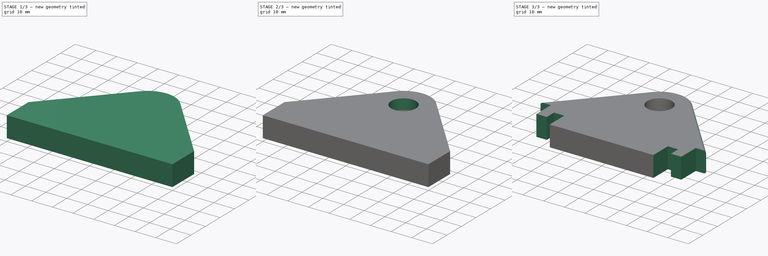
[diagram: build sequence overview — one tinted view per stage of 3, left to right]
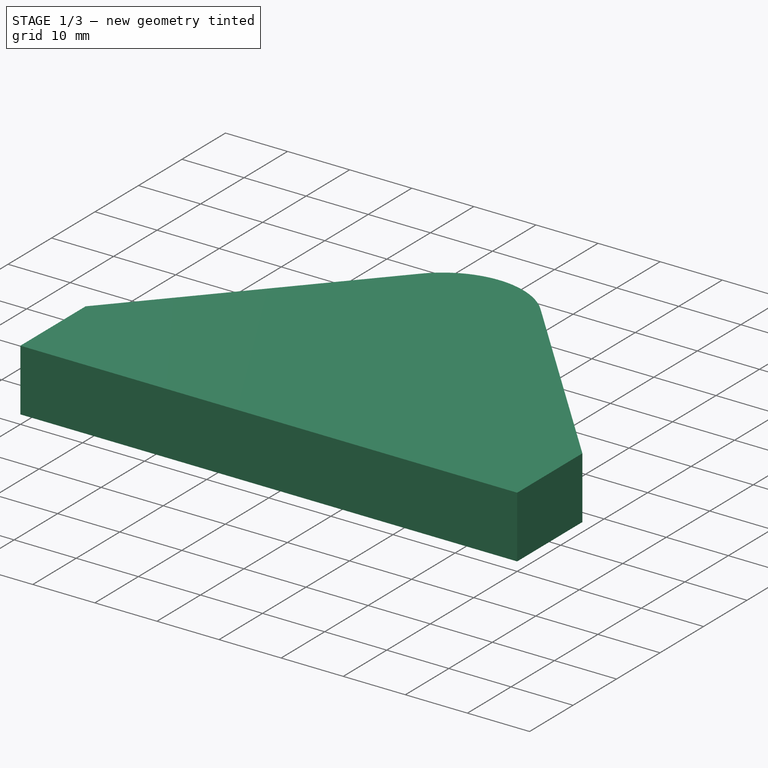
[diagram: stage 1 of 3 — iso view after this stage's code; geometry added in this stage tinted green]
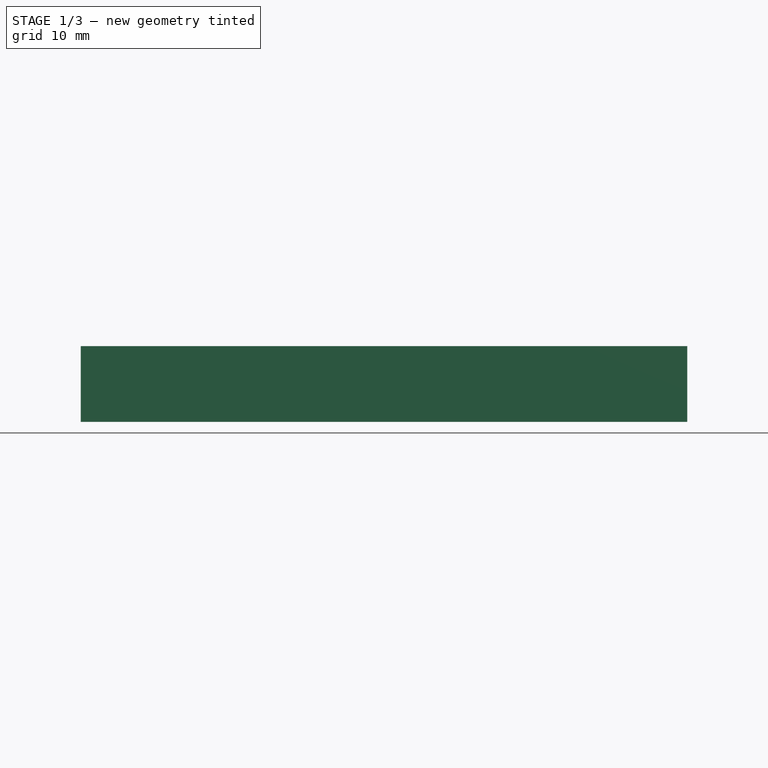
[diagram: stage 1 of 3 — front view after this stage's code; geometry added in this stage tinted green]
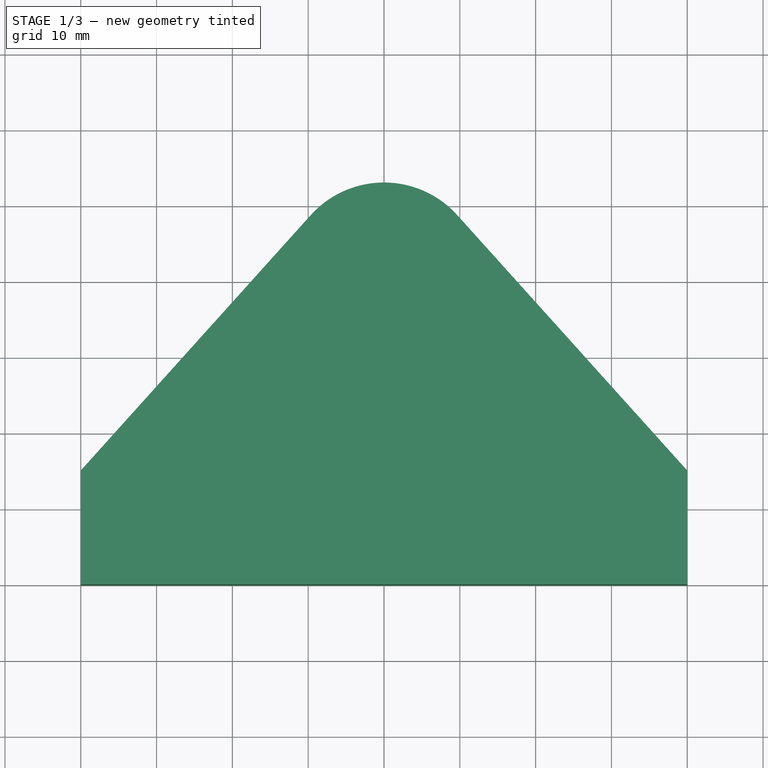
[diagram: stage 1 of 3 — top view after this stage's code; geometry added in this stage tinted green]
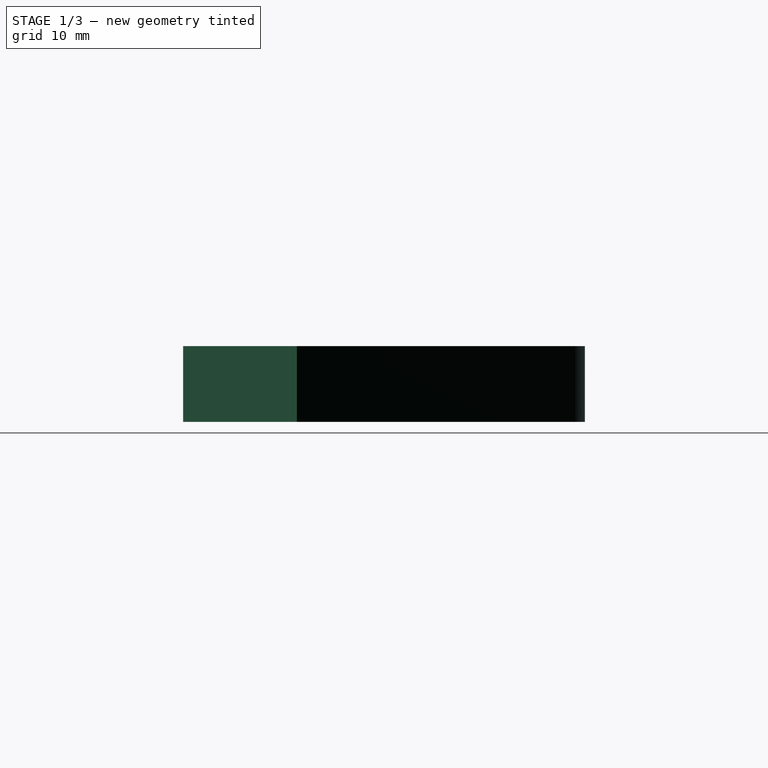
[diagram: stage 1 of 3 — right view after this stage's code; geometry added in this stage tinted green]
FCSTD DOCUMENT  (FreeCAD 0.16R6700 (Git))
Label: CoilHangerCap
License: All rights reserved
LicenseURL: http://en.wikipedia.org/wiki/All_rights_reserved
objects: Sketcher::SketchObject×4, PartDesign::Pocket×3, PartDesign::Pad×1, PartDesign::Fillet×1
note: 13 computed .brp shape members not serialized (recipe doc carries the construction recipe); baked Part::Feature solids carry a one-line shape summary decoded from their .brp

FEATURE [Sketcher::SketchObject] Sketch
  sketch-geometry (6):
    g0: LineSegment StartX=40 StartY=0 StartZ=0 EndX=-40 EndY=0 EndZ=0
    g1: ArcOfCircle CenterX=0 CenterY=40 CenterZ=0 NormalX=0 NormalY=0 NormalZ=1 Radius=13 StartAngle=0.732984 EndAngle=2.40861
    g2: LineSegment StartX=-40 StartY=0 StartZ=0 EndX=-40 EndY=15 EndZ=0
    g3: LineSegment StartX=-9.66136 StartY=48.6982 StartZ=0 EndX=-40 EndY=15 EndZ=0
    g4: LineSegment StartX=40 StartY=0 StartZ=0 EndX=40 EndY=15 EndZ=0
    g5: LineSegment StartX=9.66136 StartY=48.6982 StartZ=0 EndX=40 EndY=15 EndZ=0
  constraints (19):
    c: PointOnObject(g0,g-1)
    c: PointOnObject(g0,g-1)
    c: Vertical(g2)
    c: Coincident(g3,g1)
    c: Radius(g1) = 13
    c: DistanceY(g-1,g2) = 15
    c: Coincident(g4,g0)
    c: Vertical(g4)
    c: Coincident(g5,g1)
    c: Coincident(g5,g4)
    c: Coincident(g2,g3)
    c: DistanceY(g-1,g4) = 15
    c: Coincident(g0,g2)
    c: Tangent(g1,g3) = -1.5708
    c: Tangent(g1,g5) = 1.5708
    c: PointOnObject(g1,g-2)
    c: DistanceY(g-1,g1) = 40
    c: Symmetric(g0,g0,g-2)
    c: DistanceX(g0,g0) = 80
FEATURE [PartDesign::Pad] Pad
  Length = 10
  Length2 = 100
  Sketch = -> Sketch
  Type = 0
FEATURE [Sketcher::SketchObject] Sketch001
  Placement = pos=(0,0,0) rot=(1,0,0;3.14159rad)
  Support = -> Pad [Face7]
  sketch-geometry (1):
    g0: Circle CenterX=0 CenterY=-40 CenterZ=0 NormalX=0 NormalY=0 NormalZ=1 Radius=8
  constraints (1):
    c: Radius(g0) = 8
FEATURE [PartDesign::Pocket] Pocket
  Length = 5
  Sketch = -> Sketch001
  Type = 0
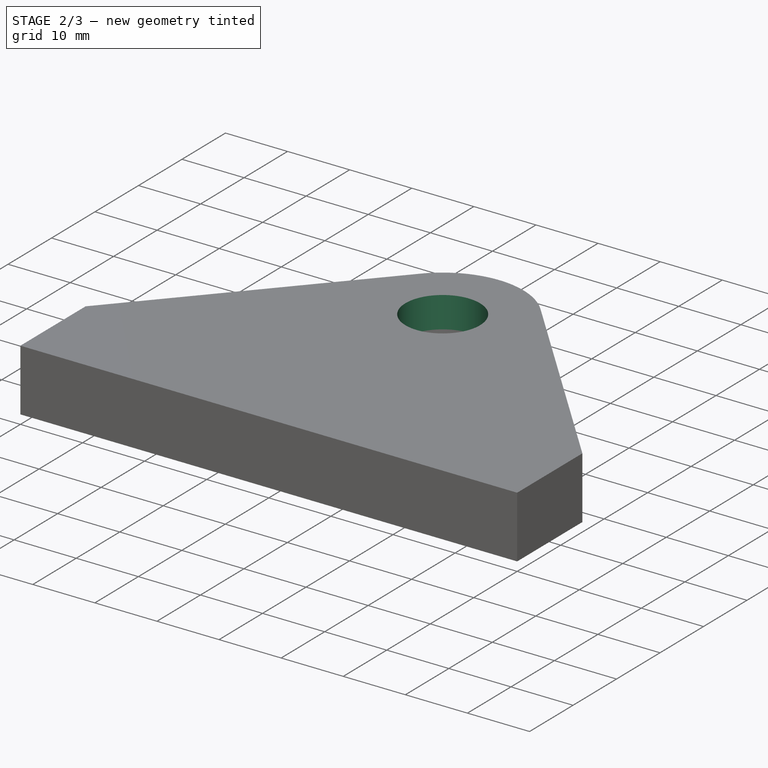
[diagram: stage 2 of 3 — iso view after this stage's code; geometry added in this stage tinted green]
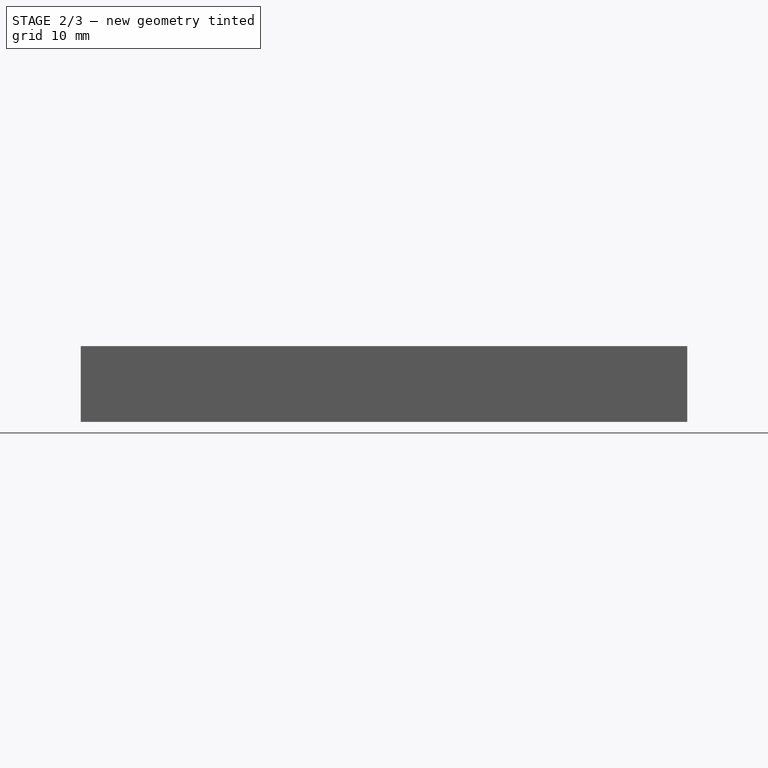
[diagram: stage 2 of 3 — front view after this stage's code; geometry added in this stage tinted green]
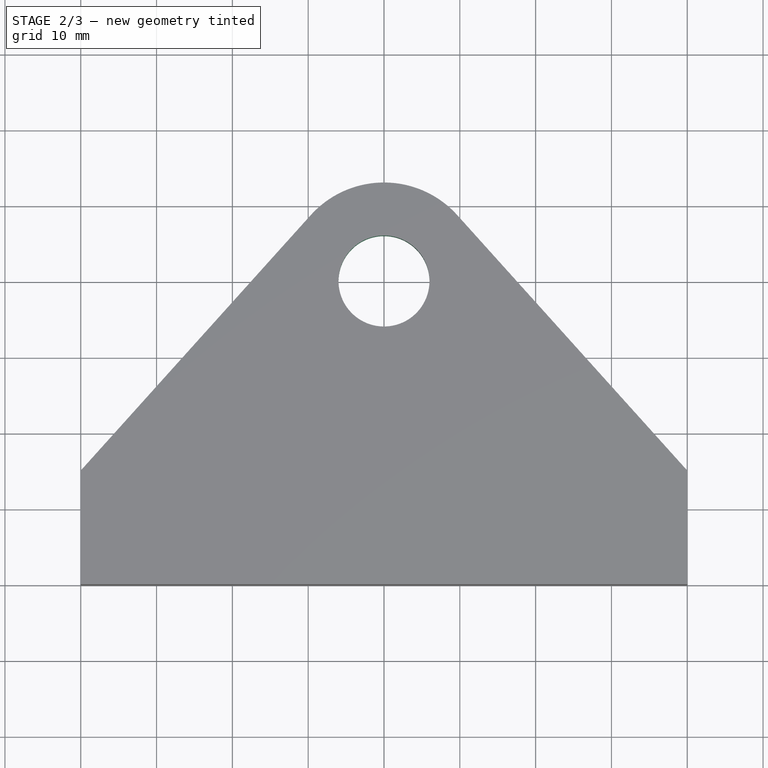
[diagram: stage 2 of 3 — top view after this stage's code; geometry added in this stage tinted green]
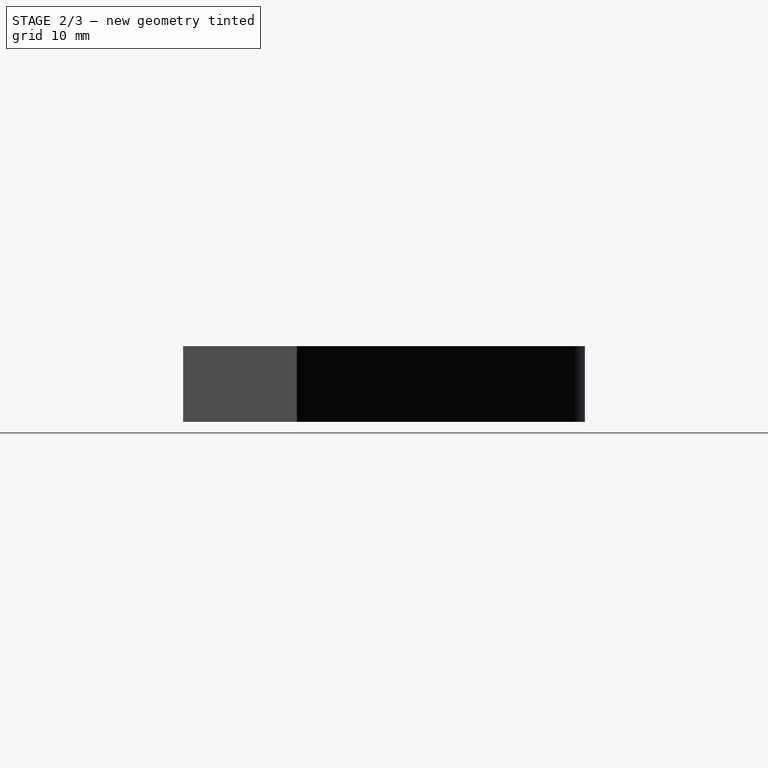
[diagram: stage 2 of 3 — right view after this stage's code; geometry added in this stage tinted green]
FEATURE [Sketcher::SketchObject] Sketch003
  Placement = pos=(0,0,5) rot=(1,0,0;3.14159rad)
  Support = -> Pocket [Face10]
  sketch-geometry (1):
    g0: Circle CenterX=0 CenterY=-40 CenterZ=0 NormalX=0 NormalY=0 NormalZ=1 Radius=6
  constraints (2):
    c: PointOnObject(g0,g-2)
    c: Radius(g0) = 6
FEATURE [PartDesign::Pocket] Pocket001
  Length = 5
  Sketch = -> Sketch003
  Type = 0
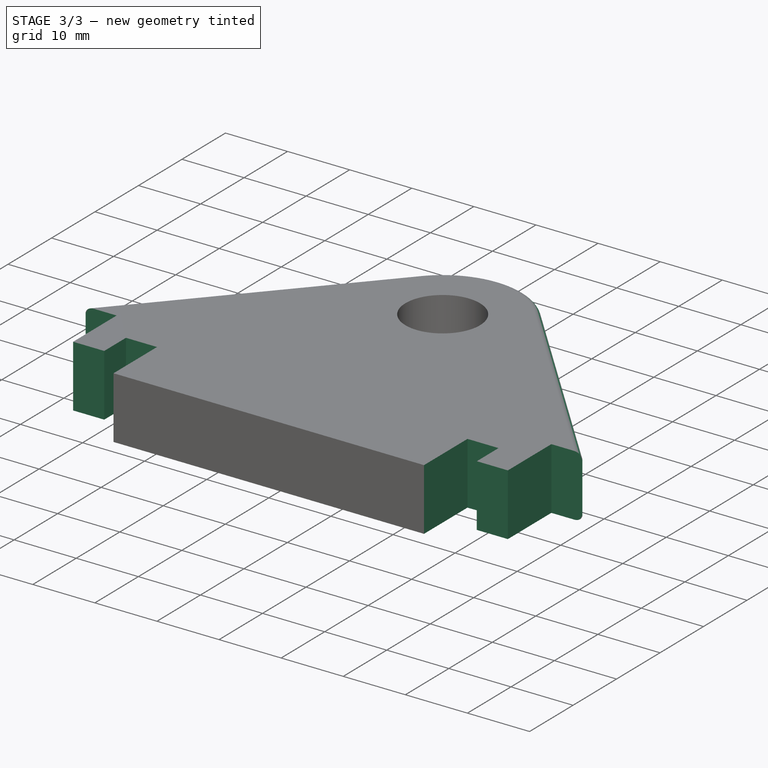
[diagram: stage 3 of 3 — iso view after this stage's code; geometry added in this stage tinted green]
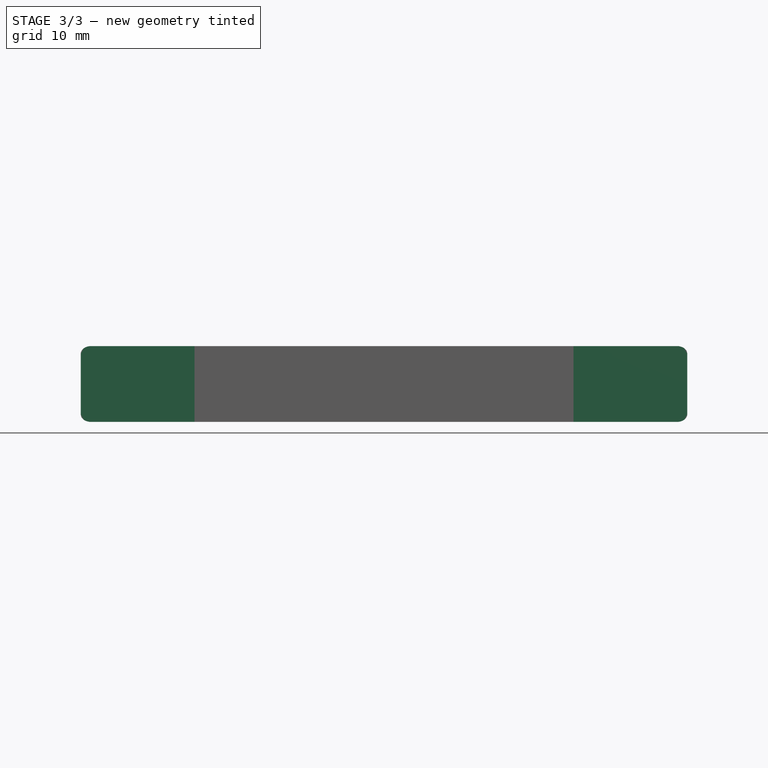
[diagram: stage 3 of 3 — front view after this stage's code; geometry added in this stage tinted green]
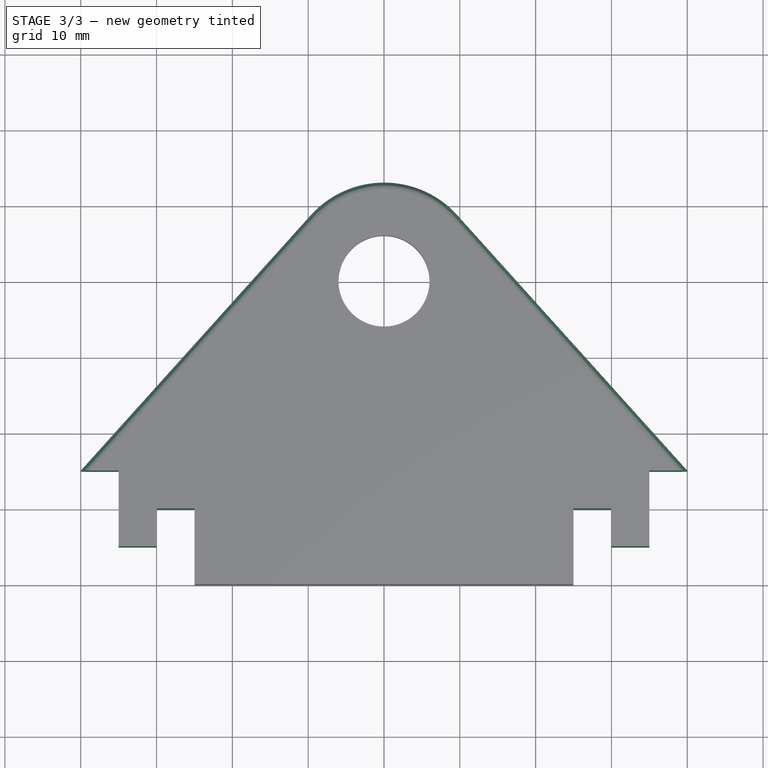
[diagram: stage 3 of 3 — top view after this stage's code; geometry added in this stage tinted green]
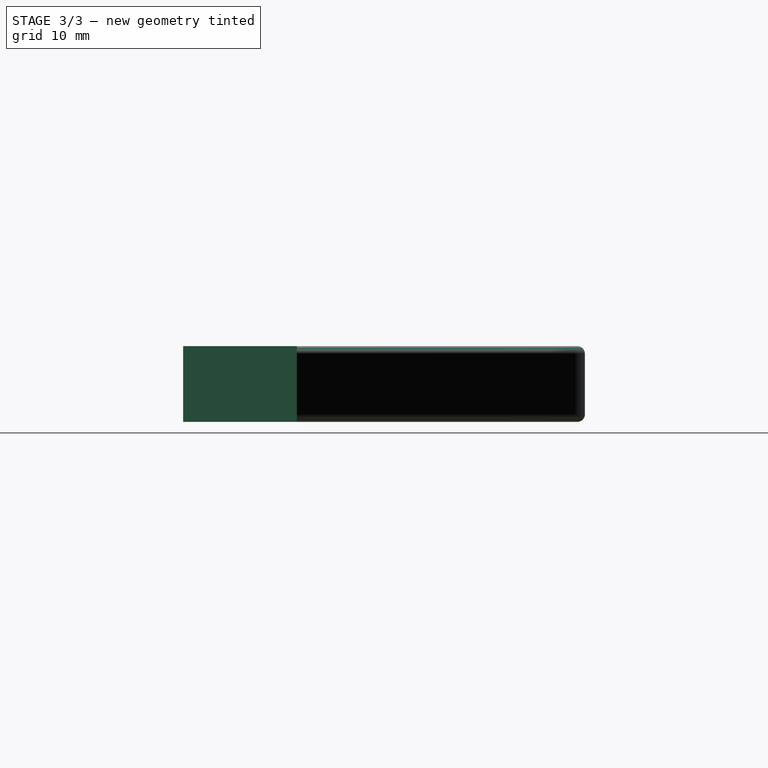
[diagram: stage 3 of 3 — right view after this stage's code; geometry added in this stage tinted green]
FEATURE [Sketcher::SketchObject] Sketch002
  Placement = pos=(0,0,0) rot=(1,0,0;3.14159rad)
  Support = -> Pocket001 [Face4]
  sketch-geometry (16):
    g0: LineSegment StartX=-40 StartY=-15 StartZ=0 EndX=-40 EndY=0 EndZ=0
    g1: LineSegment StartX=-40 StartY=0 StartZ=0 EndX=-25 EndY=0 EndZ=0
    g2: LineSegment StartX=-25 StartY=0 StartZ=0 EndX=-25 EndY=-10 EndZ=0
    g3: LineSegment StartX=-25 StartY=-10 StartZ=0 EndX=-30 EndY=-10 EndZ=0
    g4: LineSegment StartX=-30 StartY=-10 StartZ=0 EndX=-30 EndY=-5 EndZ=0
    g5: LineSegment StartX=-30 StartY=-5 StartZ=0 EndX=-35 EndY=-5 EndZ=0
    g6: LineSegment StartX=-35 StartY=-5 StartZ=0 EndX=-35 EndY=-15 EndZ=0
    g7: LineSegment StartX=-35 StartY=-15 StartZ=0 EndX=-40 EndY=-15 EndZ=0
    g8: LineSegment StartX=40 StartY=-15 StartZ=0 EndX=40 EndY=0 EndZ=0
    g9: LineSegment StartX=40 StartY=0 StartZ=0 EndX=25 EndY=0 EndZ=0
    g10: LineSegment StartX=25 StartY=0 StartZ=0 EndX=25 EndY=-10 EndZ=0
    g11: LineSegment StartX=25 StartY=-10 StartZ=0 EndX=30 EndY=-10 EndZ=0
    g12: LineSegment StartX=30 StartY=-10 StartZ=0 EndX=30 EndY=-5 EndZ=0
    g13: LineSegment StartX=30 StartY=-5 StartZ=0 EndX=35 EndY=-5 EndZ=0
    g14: LineSegment StartX=35 StartY=-5 StartZ=0 EndX=35 EndY=-15 EndZ=0
    g15: LineSegment StartX=35 StartY=-15 StartZ=0 EndX=40 EndY=-15 EndZ=0
  constraints (40):
    c: Vertical(g0)
    c: Coincident(g0,g1)
    c: PointOnObject(g1,g-1)
    c: Horizontal(g1)
    c: Coincident(g1,g2)
    c: Vertical(g2)
    c: Coincident(g2,g3)
    c: Horizontal(g3)
    c: Coincident(g3,g4)
    c: Vertical(g4)
    c: Coincident(g4,g5)
    c: Horizontal(g5)
    c: Coincident(g5,g6)
    c: Vertical(g6)
    c: Coincident(g6,g7)
    c: Coincident(g7,g0)
    c: Horizontal(g7)
    c: DistanceX(g1,g-1) = 25
    c: DistanceX(g0,g-1) = 40
    c: DistanceX(g4,g-1) = 30
    c: DistanceX(g5,g-1) = 35
    c: DistanceY(g4,g-1) = 5
    c: DistanceY(g2,g-1) = 10
    c: DistanceY(g0,g-1) = 15
    c: Vertical(g8)
    c: Coincident(g8,g9)
    c: Horizontal(g9)
    c: Coincident(g9,g10)
    c: Vertical(g10)
    c: Coincident(g10,g11)
    c: Horizontal(g11)
    c: Coincident(g11,g12)
    c: Vertical(g12)
    c: Coincident(g12,g13)
    c: Horizontal(g13)
    c: Coincident(g13,g14)
    c: Vertical(g14)
    c: Coincident(g14,g15)
    c: Coincident(g15,g8)
    c: Horizontal(g15)
FEATURE [PartDesign::Pocket] Pocket002
  Length = 10
  Sketch = -> Sketch002
  Type = 0
FEATURE [PartDesign::Fillet] Fillet
  Base = -> Pocket002 [Edge28,Edge11]
  Radius = 1
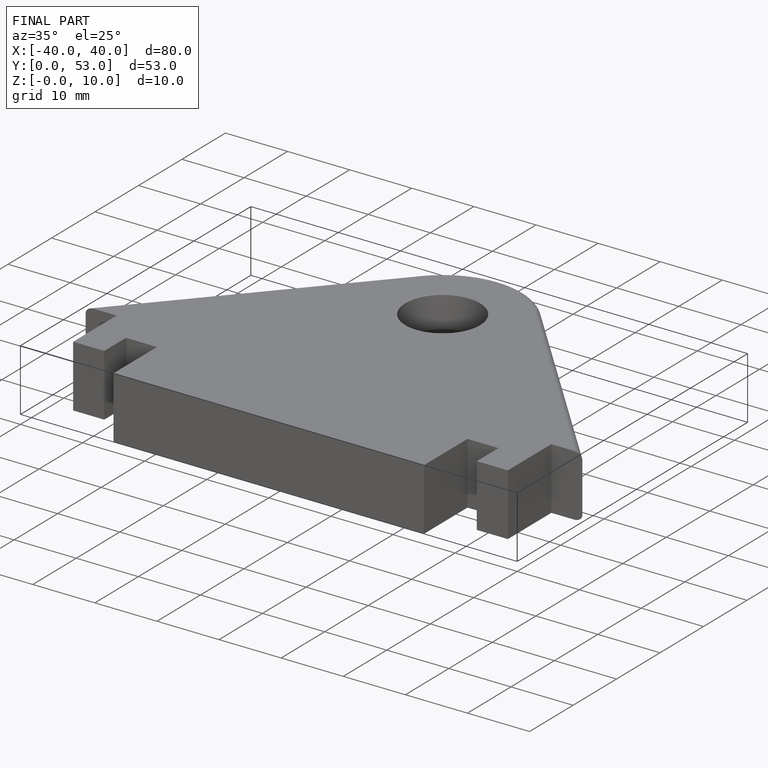
[diagram: finished part — iso view with bounding-box wireframe]
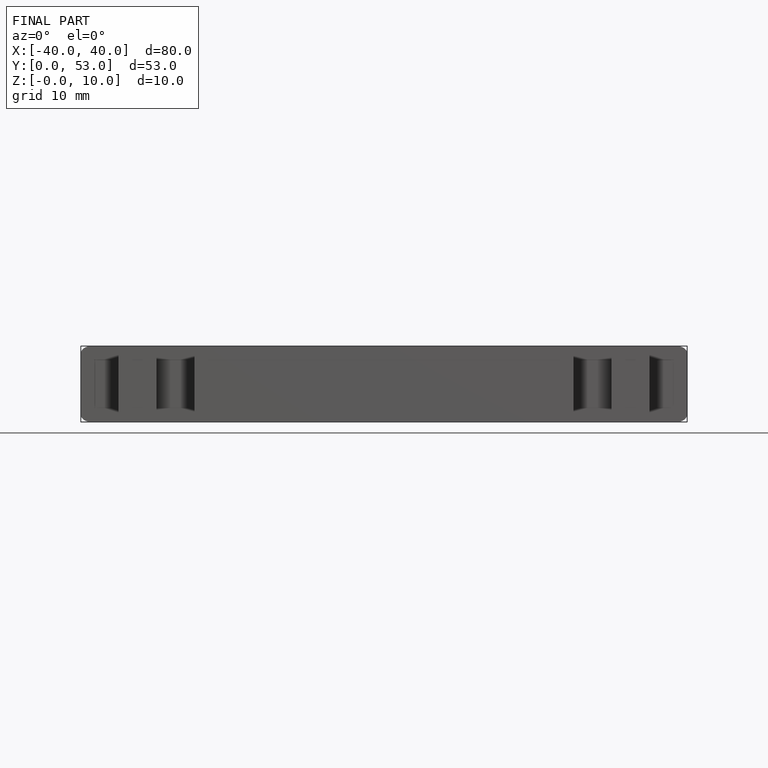
[diagram: finished part — front view with bounding-box wireframe]
